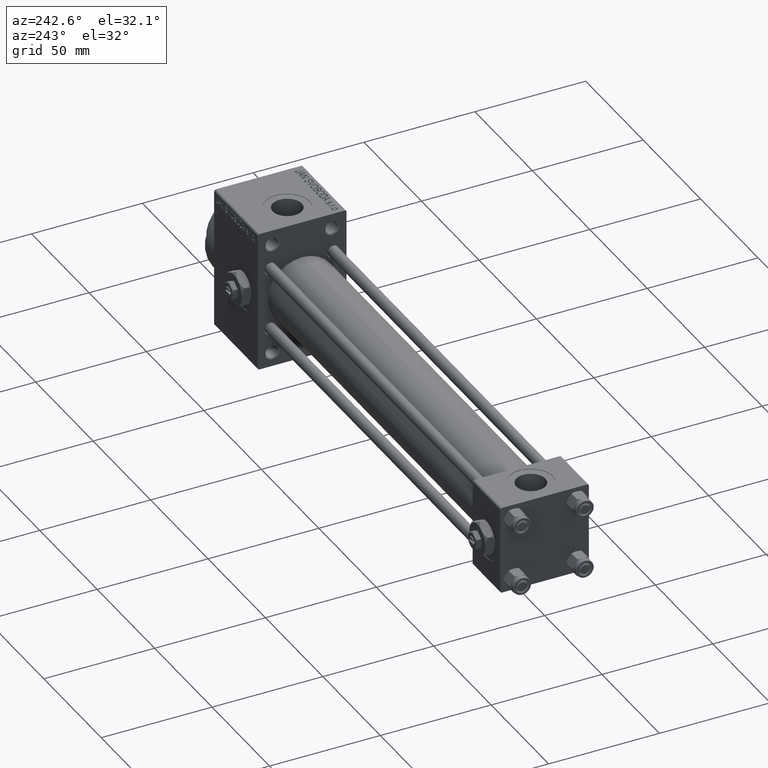
[diagram: clean part render]
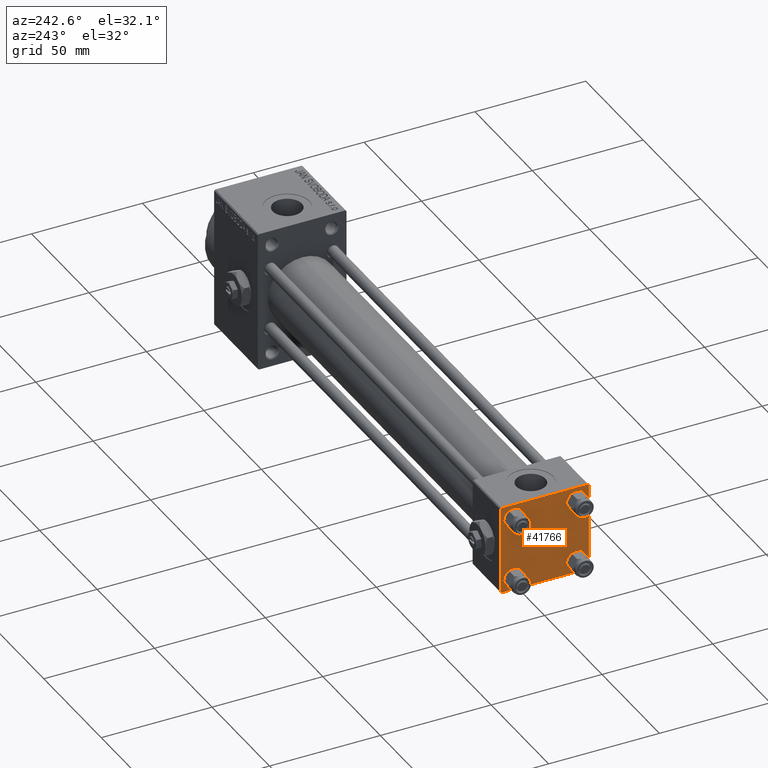
[diagram: same view with one face highlighted and labeled with its STEP entity id]
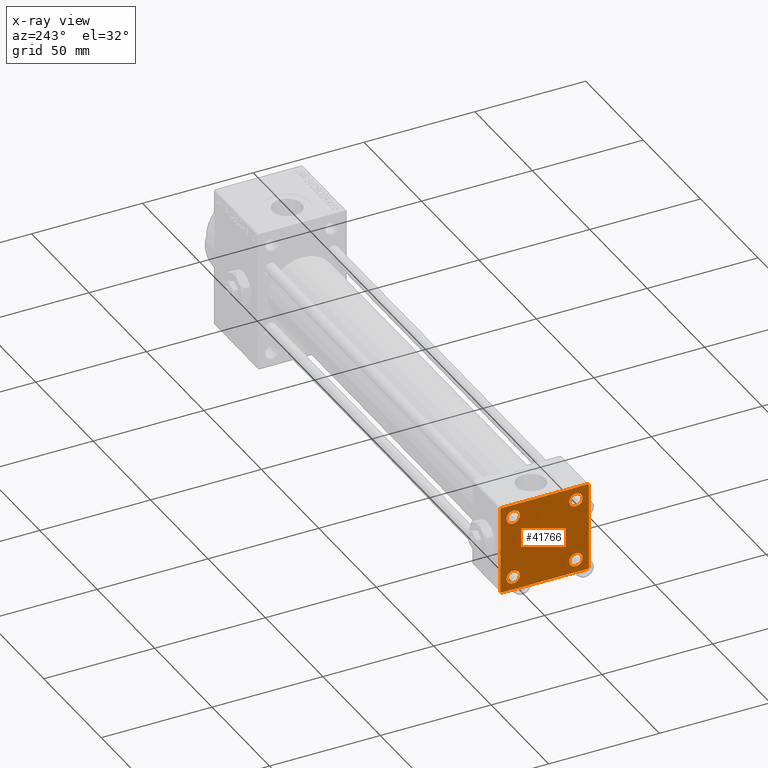
[diagram: x-ray of the same camera — body ghosted, the highlighted face saturated]
A machine part, auxiliary view. The second image highlights one B-rep face of the part: STEP entity #41766.
The next image is the same camera in x-ray: the body ghosted, the highlighted face saturated — about 0% of this face is hidden behind the body in this view.
In plain terms, the highlighted planar face has unit normal (-1, 0, 0).
Its self-contained STEP definition (entity closure, byte-faithful):
#286 = DIRECTION ( 'NONE',  ( 1.000000000000000000, 0.000000000000000000, 0.000000000000000000 ) ) ;
#564 = VECTOR ( 'NONE', #1605, 1000.000000000000000 ) ;
#838 = DIRECTION ( 'NONE',  ( 0.000000000000000000, 0.000000000000000000, 1.000000000000000000 ) ) ;
#884 = EDGE_CURVE ( 'NONE', #18586, #12651, #15842, .T. ) ;
#935 = DIRECTION ( 'NONE',  ( 0.000000000000000000, 0.7071067811865425767, -0.7071067811865525687 ) ) ;
#1605 = DIRECTION ( 'NONE',  ( 0.000000000000000000, 8.673617379884036705E-17, -1.000000000000000000 ) ) ;
#1675 = CARTESIAN_POINT ( 'NONE',  ( -0.000000000000000000, 19.75000000000013500, 19.74999999999986144 ) ) ;
#1934 = AXIS2_PLACEMENT_3D ( 'NONE', #23204, #19492, #27177 ) ;
#1965 = CIRCLE ( 'NONE', #1934, 3.000000000000004441 ) ;
#2011 = CARTESIAN_POINT ( 'NONE',  ( 0.000000000000000000, -20.00000000000000355, 19.49999999999998224 ) ) ;
#2148 = CARTESIAN_POINT ( 'NONE',  ( -0.000000000000000000, 19.74999999999986855, -19.75000000000014211 ) ) ;
#2267 = ORIENTED_EDGE ( 'NONE', *, *, #8183, .F. ) ;
#2274 = VECTOR ( 'NONE', #24200, 1000.000000000000000 ) ;
#2441 = DIRECTION ( 'NONE',  ( 0.000000000000000000, 0.000000000000000000, 1.000000000000000000 ) ) ;
#2813 = CARTESIAN_POINT ( 'NONE',  ( 0.000000000000000000, 19.50000000000000000, 20.00000000000000000 ) ) ;
#2879 = CIRCLE ( 'NONE', #16333, 2.999999999999983569 ) ;
#2967 = CARTESIAN_POINT ( 'NONE',  ( 0.000000000000000000, 20.00000000000000000, 20.00000000000000000 ) ) ;
#4376 = DIRECTION ( 'NONE',  ( -1.000000000000000000, 0.000000000000000000, -0.000000000000000000 ) ) ;
#4523 = CARTESIAN_POINT ( 'NONE',  ( 0.000000000000000000, 14.14999999999999858, 14.15000000000000036 ) ) ;
#4870 = FACE_BOUND ( 'NONE', #34317, .T. ) ;
#4946 = VERTEX_POINT ( 'NONE', #19633 ) ;
#5350 = AXIS2_PLACEMENT_3D ( 'NONE', #16970, #16234, #17207 ) ;
#5499 = EDGE_LOOP ( 'NONE', ( #12941, #19618 ) ) ;
#6154 = ORIENTED_EDGE ( 'NONE', *, *, #7673, .T. ) ;
#6545 = ORIENTED_EDGE ( 'NONE', *, *, #28069, .T. ) ;
#6608 = EDGE_CURVE ( 'NONE', #15275, #20084, #2879, .T. ) ;
#7673 = EDGE_CURVE ( 'NONE', #31061, #19669, #33024, .T. ) ;
#7753 = DIRECTION ( 'NONE',  ( 0.000000000000000000, 0.000000000000000000, 1.000000000000000000 ) ) ;
#8032 = DIRECTION ( 'NONE',  ( 0.000000000000000000, 0.000000000000000000, 1.000000000000000000 ) ) ;
#8183 = EDGE_CURVE ( 'NONE', #9450, #4946, #19488, .T. ) ;
#8740 = CARTESIAN_POINT ( 'NONE',  ( 0.000000000000000000, 14.14999999999999858, 11.15000000000001990 ) ) ;
#8785 = CARTESIAN_POINT ( 'NONE',  ( 0.000000000000000000, 14.14999999999999858, 14.15000000000000036 ) ) ;
#9162 = EDGE_CURVE ( 'NONE', #19908, #43587, #29943, .T. ) ;
#9450 = VERTEX_POINT ( 'NONE', #2011 ) ;
#9604 = CIRCLE ( 'NONE', #16619, 2.999999999999983569 ) ;
#9827 = ORIENTED_EDGE ( 'NONE', *, *, #30245, .T. ) ;
#10041 = CARTESIAN_POINT ( 'NONE',  ( 0.000000000000000000, 14.14999999999999858, 17.14999999999998437 ) ) ;
#11748 = DIRECTION ( 'NONE',  ( 0.000000000000000000, -1.000000000000000000, 1.734723475976807094E-16 ) ) ;
#11820 = VERTEX_POINT ( 'NONE', #21033 ) ;
#11910 = CARTESIAN_POINT ( 'NONE',  ( 0.000000000000000000, -14.14999999999999503, -17.15000000000000924 ) ) ;
#12259 = EDGE_CURVE ( 'NONE', #18586, #17218, #35075, .T. ) ;
#12651 = VERTEX_POINT ( 'NONE', #42934 ) ;
#12941 = ORIENTED_EDGE ( 'NONE', *, *, #6608, .T. ) ;
#13189 = ORIENTED_EDGE ( 'NONE', *, *, #9162, .T. ) ;
#13915 = EDGE_LOOP ( 'NONE', ( #6154, #39796 ) ) ;
#14141 = VECTOR ( 'NONE', #42032, 1000.000000000000000 ) ;
#14551 = ORIENTED_EDGE ( 'NONE', *, *, #12259, .F. ) ;
#15079 = PLANE ( 'NONE',  #15248 ) ;
#15248 = AXIS2_PLACEMENT_3D ( 'NONE', #15799, #4376, #45334 ) ;
#15265 = CARTESIAN_POINT ( 'NONE',  ( 0.000000000000000000, 20.00000000000000000, 20.00000000000000000 ) ) ;
#15275 = VERTEX_POINT ( 'NONE', #36552 ) ;
#15799 = CARTESIAN_POINT ( 'NONE',  ( 0.000000000000000000, 0.000000000000000000, 0.000000000000000000 ) ) ;
#15842 = LINE ( 'NONE', #1675, #41521 ) ;
#15907 = EDGE_CURVE ( 'NONE', #20084, #15275, #46638, .T. ) ;
#16234 = DIRECTION ( 'NONE',  ( 1.000000000000000000, 0.000000000000000000, 0.000000000000000000 ) ) ;
#16274 = CARTESIAN_POINT ( 'NONE',  ( 0.000000000000000000, 14.14999999999999858, -14.15000000000000036 ) ) ;
#16333 = AXIS2_PLACEMENT_3D ( 'NONE', #27044, #33830, #25633 ) ;
#16619 = AXIS2_PLACEMENT_3D ( 'NONE', #26588, #286, #7753 ) ;
#16970 = CARTESIAN_POINT ( 'NONE',  ( 0.000000000000000000, -14.14999999999999503, -14.15000000000000391 ) ) ;
#17207 = DIRECTION ( 'NONE',  ( 0.000000000000000000, 0.000000000000000000, 1.000000000000000000 ) ) ;
#17218 = VERTEX_POINT ( 'NONE', #28498 ) ;
#17553 = CARTESIAN_POINT ( 'NONE',  ( 0.000000000000000000, -14.14999999999999503, -11.15000000000000036 ) ) ;
#17600 = VERTEX_POINT ( 'NONE', #18742 ) ;
#17648 = EDGE_CURVE ( 'NONE', #19669, #31061, #45125, .T. ) ;
#18320 = DIRECTION ( 'NONE',  ( 1.000000000000000000, 0.000000000000000000, 0.000000000000000000 ) ) ;
#18586 = VERTEX_POINT ( 'NONE', #2813 ) ;
#18742 = CARTESIAN_POINT ( 'NONE',  ( 0.000000000000000000, 14.14999999999999858, -17.14999999999998437 ) ) ;
#19488 = LINE ( 'NONE', #38832, #564 ) ;
#19492 = DIRECTION ( 'NONE',  ( 1.000000000000000000, 0.000000000000000000, 0.000000000000000000 ) ) ;
#19597 = EDGE_LOOP ( 'NONE', ( #6545, #29921, #23914, #9827, #2267, #22025, #14551, #42519 ) ) ;
#19610 = DIRECTION ( 'NONE',  ( -0.000000000000000000, 0.7071067811865500152, 0.7071067811865451302 ) ) ;
#19618 = ORIENTED_EDGE ( 'NONE', *, *, #15907, .T. ) ;
#19633 = CARTESIAN_POINT ( 'NONE',  ( 0.000000000000000000, -20.00000000000000000, -19.49999999999999645 ) ) ;
#19669 = VERTEX_POINT ( 'NONE', #8740 ) ;
#19800 = AXIS2_PLACEMENT_3D ( 'NONE', #16274, #36107, #39089 ) ;
#19853 = CARTESIAN_POINT ( 'NONE',  ( 0.000000000000000000, 20.00000000000000000, -19.50000000000002132 ) ) ;
#19908 = VERTEX_POINT ( 'NONE', #11910 ) ;
#20084 = VERTEX_POINT ( 'NONE', #22526 ) ;
#21033 = CARTESIAN_POINT ( 'NONE',  ( 0.000000000000000000, -19.50000000000000711, -20.00000000000000000 ) ) ;
#21637 = VERTEX_POINT ( 'NONE', #47932 ) ;
#22025 = ORIENTED_EDGE ( 'NONE', *, *, #26547, .T. ) ;
#22427 = CARTESIAN_POINT ( 'NONE',  ( 0.000000000000000000, 20.00000000000000000, -20.00000000000000711 ) ) ;
#22526 = CARTESIAN_POINT ( 'NONE',  ( 0.000000000000000000, -14.14999999999999503, 11.15000000000002345 ) ) ;
#22840 = ORIENTED_EDGE ( 'NONE', *, *, #35734, .T. ) ;
#23204 = CARTESIAN_POINT ( 'NONE',  ( 0.000000000000000000, -14.14999999999999503, -14.15000000000000391 ) ) ;
#23222 = FACE_BOUND ( 'NONE', #47951, .T. ) ;
#23914 = ORIENTED_EDGE ( 'NONE', *, *, #31152, .T. ) ;
#24200 = DIRECTION ( 'NONE',  ( 0.000000000000000000, -0.7071067811865401342, 0.7071067811865549002 ) ) ;
#24220 = DIRECTION ( 'NONE',  ( -0.000000000000000000, -0.7071067811865524577, -0.7071067811865426878 ) ) ;
#25254 = CARTESIAN_POINT ( 'NONE',  ( 0.000000000000000000, -14.14999999999999503, 14.15000000000000391 ) ) ;
#25633 = DIRECTION ( 'NONE',  ( 0.000000000000000000, 0.000000000000000000, 1.000000000000000000 ) ) ;
#25815 = VERTEX_POINT ( 'NONE', #19853 ) ;
#26547 = EDGE_CURVE ( 'NONE', #9450, #17218, #33784, .T. ) ;
#26588 = CARTESIAN_POINT ( 'NONE',  ( 0.000000000000000000, 14.14999999999999858, -14.15000000000000036 ) ) ;
#27044 = CARTESIAN_POINT ( 'NONE',  ( 0.000000000000000000, -14.14999999999999503, 14.15000000000000391 ) ) ;
#27061 = CARTESIAN_POINT ( 'NONE',  ( -0.000000000000000000, -19.74999999999992539, 19.75000000000006395 ) ) ;
#27177 = DIRECTION ( 'NONE',  ( 0.000000000000000000, 0.000000000000000000, 1.000000000000000000 ) ) ;
#27455 = AXIS2_PLACEMENT_3D ( 'NONE', #4523, #41993, #8032 ) ;
#27966 = LINE ( 'NONE', #2148, #33099 ) ;
#28069 = EDGE_CURVE ( 'NONE', #12651, #25815, #36477, .T. ) ;
#28160 = EDGE_CURVE ( 'NONE', #25815, #29972, #27966, .T. ) ;
#28349 = VECTOR ( 'NONE', #44151, 1000.000000000000000 ) ;
#28375 = DIRECTION ( 'NONE',  ( 1.000000000000000000, 0.000000000000000000, 0.000000000000000000 ) ) ;
#28498 = CARTESIAN_POINT ( 'NONE',  ( 0.000000000000000000, -19.49999999999999289, 19.99999999999998934 ) ) ;
#29921 = ORIENTED_EDGE ( 'NONE', *, *, #28160, .T. ) ;
#29943 = CIRCLE ( 'NONE', #5350, 3.000000000000004441 ) ;
#29972 = VERTEX_POINT ( 'NONE', #32945 ) ;
#30245 = EDGE_CURVE ( 'NONE', #11820, #4946, #43058, .T. ) ;
#30820 = AXIS2_PLACEMENT_3D ( 'NONE', #25254, #18320, #2441 ) ;
#31061 = VERTEX_POINT ( 'NONE', #10041 ) ;
#31152 = EDGE_CURVE ( 'NONE', #29972, #11820, #41292, .T. ) ;
#32945 = CARTESIAN_POINT ( 'NONE',  ( 0.000000000000000000, 19.50000000000000711, -20.00000000000000711 ) ) ;
#33024 = CIRCLE ( 'NONE', #27455, 2.999999999999983569 ) ;
#33099 = VECTOR ( 'NONE', #24220, 1000.000000000000000 ) ;
#33464 = ORIENTED_EDGE ( 'NONE', *, *, #48161, .T. ) ;
#33784 = LINE ( 'NONE', #27061, #38611 ) ;
#33830 = DIRECTION ( 'NONE',  ( 1.000000000000000000, 0.000000000000000000, 0.000000000000000000 ) ) ;
#34317 = EDGE_LOOP ( 'NONE', ( #22840, #44683 ) ) ;
#34851 = AXIS2_PLACEMENT_3D ( 'NONE', #8785, #28375, #838 ) ;
#35075 = LINE ( 'NONE', #15265, #14141 ) ;
#35734 = EDGE_CURVE ( 'NONE', #21637, #17600, #35748, .T. ) ;
#35748 = CIRCLE ( 'NONE', #19800, 2.999999999999983569 ) ;
#36107 = DIRECTION ( 'NONE',  ( 1.000000000000000000, 0.000000000000000000, 0.000000000000000000 ) ) ;
#36237 = EDGE_CURVE ( 'NONE', #17600, #21637, #9604, .T. ) ;
#36477 = LINE ( 'NONE', #2967, #28349 ) ;
#36552 = CARTESIAN_POINT ( 'NONE',  ( 0.000000000000000000, -14.14999999999999503, 17.14999999999998792 ) ) ;
#37173 = VECTOR ( 'NONE', #11748, 1000.000000000000000 ) ;
#38369 = FACE_OUTER_BOUND ( 'NONE', #19597, .T. ) ;
#38611 = VECTOR ( 'NONE', #19610, 1000.000000000000114 ) ;
#38832 = CARTESIAN_POINT ( 'NONE',  ( 0.000000000000000000, -20.00000000000000355, 19.99999999999998934 ) ) ;
#39089 = DIRECTION ( 'NONE',  ( 0.000000000000000000, 0.000000000000000000, 1.000000000000000000 ) ) ;
#39594 = CARTESIAN_POINT ( 'NONE',  ( 0.000000000000000000, -19.75000000000020961, -19.74999999999979394 ) ) ;
#39796 = ORIENTED_EDGE ( 'NONE', *, *, #17648, .T. ) ;
#41292 = LINE ( 'NONE', #22427, #37173 ) ;
#41521 = VECTOR ( 'NONE', #935, 999.9999999999998863 ) ;
#41766 = ADVANCED_FACE ( 'NONE', ( #41842, #23222, #4870, #45816, #38369 ), #15079, .T. ) ;
#41842 = FACE_BOUND ( 'NONE', #5499, .T. ) ;
#41993 = DIRECTION ( 'NONE',  ( 1.000000000000000000, 0.000000000000000000, 0.000000000000000000 ) ) ;
#42032 = DIRECTION ( 'NONE',  ( 0.000000000000000000, -1.000000000000000000, -2.602085213965210149E-16 ) ) ;
#42519 = ORIENTED_EDGE ( 'NONE', *, *, #884, .T. ) ;
#42934 = CARTESIAN_POINT ( 'NONE',  ( 0.000000000000000000, 20.00000000000000000, 19.49999999999999289 ) ) ;
#43058 = LINE ( 'NONE', #39594, #2274 ) ;
#43587 = VERTEX_POINT ( 'NONE', #17553 ) ;
#44151 = DIRECTION ( 'NONE',  ( 0.000000000000000000, 0.000000000000000000, -1.000000000000000000 ) ) ;
#44683 = ORIENTED_EDGE ( 'NONE', *, *, #36237, .T. ) ;
#45125 = CIRCLE ( 'NONE', #34851, 2.999999999999983569 ) ;
#45334 = DIRECTION ( 'NONE',  ( -0.000000000000000000, 0.000000000000000000, 1.000000000000000000 ) ) ;
#45816 = FACE_BOUND ( 'NONE', #13915, .T. ) ;
#46638 = CIRCLE ( 'NONE', #30820, 2.999999999999983569 ) ;
#47932 = CARTESIAN_POINT ( 'NONE',  ( 0.000000000000000000, 14.14999999999999858, -11.15000000000001812 ) ) ;
#47951 = EDGE_LOOP ( 'NONE', ( #33464, #13189 ) ) ;
#48161 = EDGE_CURVE ( 'NONE', #43587, #19908, #1965, .T. ) ;